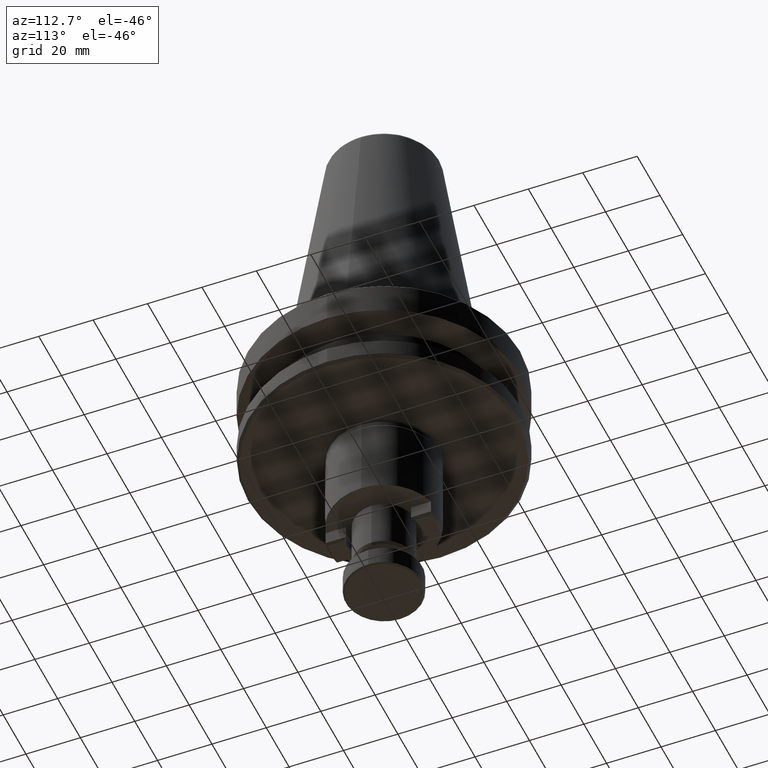
[diagram: clean part render]
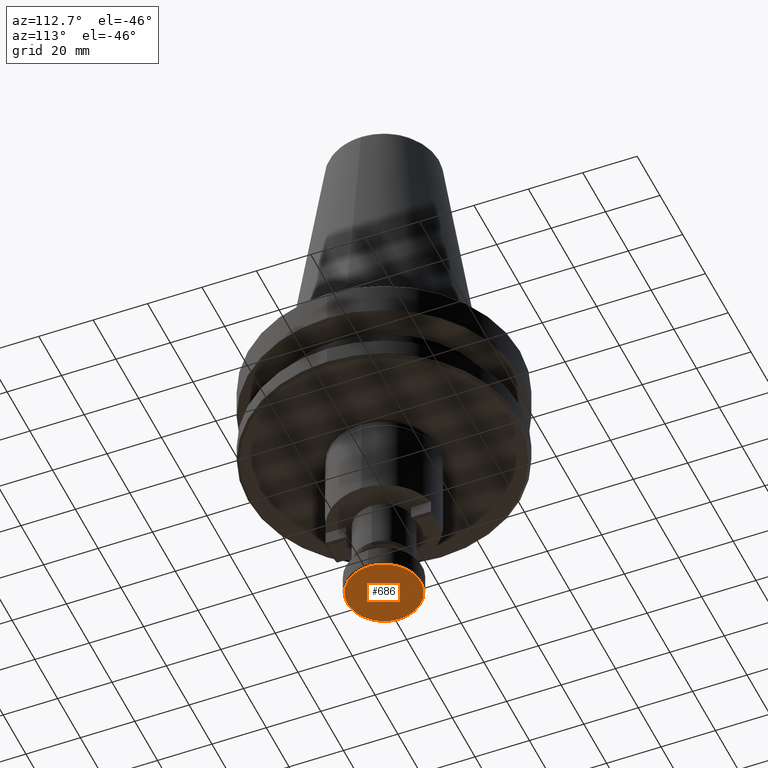
[diagram: same view with one face highlighted and labeled with its STEP entity id]
A machine part, auxiliary view. The second image highlights one B-rep face of the part: STEP entity #686.
In plain terms, the highlighted planar face has unit normal (0, 0, 1).
Its self-contained STEP definition (entity closure, byte-faithful):
#206 = CIRCLE ( 'NONE', #753, 13.49999999999998400 ) ;
#255 = ORIENTED_EDGE ( 'NONE', *, *, #1531, .T. ) ;
#286 = VERTEX_POINT ( 'NONE', #651 ) ;
#314 = CARTESIAN_POINT ( 'NONE',  ( 13.49999999999998400, 0.0000000000000000000, -102.0000000000000000 ) ) ;
#473 = CARTESIAN_POINT ( 'NONE',  ( 0.0000000000000000000, 0.0000000000000000000, -102.0000000000000000 ) ) ;
#651 = CARTESIAN_POINT ( 'NONE',  ( -13.49999999999998400, 1.683889348827608900E-015, -102.0000000000000000 ) ) ;
#686 = ADVANCED_FACE ( 'NONE', ( #1732 ), #1451, .F. ) ;
#753 = AXIS2_PLACEMENT_3D ( 'NONE', #1076, #1553, #1057 ) ;
#837 = AXIS2_PLACEMENT_3D ( 'NONE', #1843, #2012, #2490 ) ;
#964 = ORIENTED_EDGE ( 'NONE', *, *, #2371, .T. ) ;
#1001 = DIRECTION ( 'NONE',  ( -0.0000000000000000000, -0.0000000000000000000, -1.000000000000000000 ) ) ;
#1057 = DIRECTION ( 'NONE',  ( -1.000000000000000000, 0.0000000000000000000, 0.0000000000000000000 ) ) ;
#1076 = CARTESIAN_POINT ( 'NONE',  ( 0.0000000000000000000, 0.0000000000000000000, -102.0000000000000000 ) ) ;
#1157 = EDGE_LOOP ( 'NONE', ( #255, #964 ) ) ;
#1212 = DIRECTION ( 'NONE',  ( -1.000000000000000000, 0.0000000000000000000, 0.0000000000000000000 ) ) ;
#1419 = VERTEX_POINT ( 'NONE', #314 ) ;
#1451 = PLANE ( 'NONE',  #837 ) ;
#1531 = EDGE_CURVE ( 'NONE', #1419, #286, #2045, .T. ) ;
#1553 = DIRECTION ( 'NONE',  ( -0.0000000000000000000, -0.0000000000000000000, -1.000000000000000000 ) ) ;
#1732 = FACE_OUTER_BOUND ( 'NONE', #1157, .T. ) ;
#1843 = CARTESIAN_POINT ( 'NONE',  ( 0.0000000000000000000, 0.0000000000000000000, -102.0000000000000000 ) ) ;
#1913 = AXIS2_PLACEMENT_3D ( 'NONE', #473, #1001, #1212 ) ;
#2012 = DIRECTION ( 'NONE',  ( 0.0000000000000000000, 0.0000000000000000000, 1.000000000000000000 ) ) ;
#2045 = CIRCLE ( 'NONE', #1913, 13.49999999999998400 ) ;
#2371 = EDGE_CURVE ( 'NONE', #286, #1419, #206, .T. ) ;
#2490 = DIRECTION ( 'NONE',  ( 1.000000000000000000, 0.0000000000000000000, -0.0000000000000000000 ) ) ;